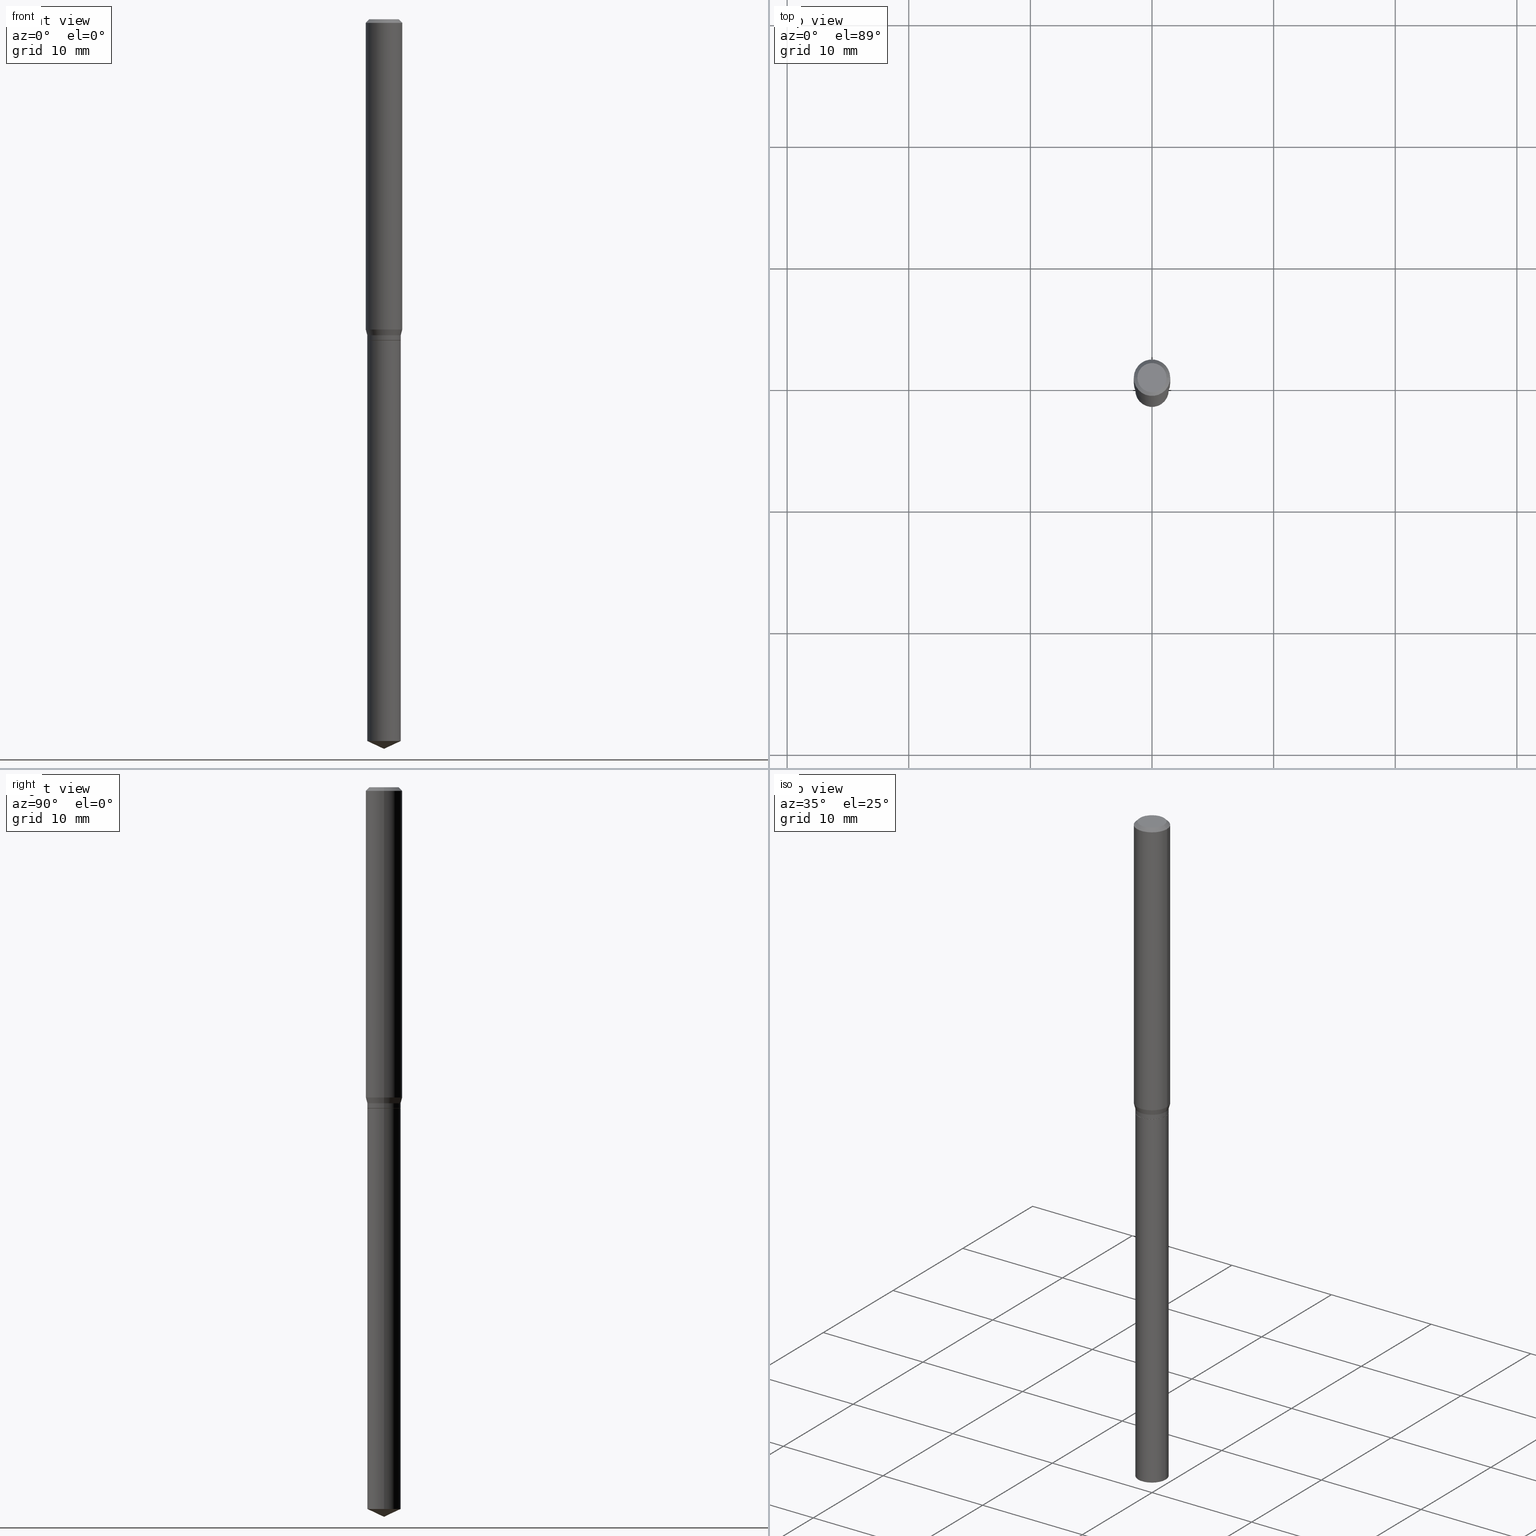
[diagram: canonical four-view strip — front | top / right | iso, engineering-drawing reading convention]
A machine part, canonical four-view strip (front | top / right | iso — engineering-drawing reading convention). The complete STEP part file that produces these views, byte-faithful:
ISO-10303-21;
HEADER;
FILE_DESCRIPTION (( 'STEP AP203' ),
    '1' );
FILE_NAME ('08400.STEP',
    '2024-04-24T14:55:23',
    ( '' ),
    ( '' ),
    'SwSTEP 2.0',
    'SolidWorks 2023',
    '' );
FILE_SCHEMA (( 'CONFIG_CONTROL_DESIGN' ));
ENDSEC;

DATA;
#1 = ORIENTED_EDGE ( 'NONE', *, *, #185, .T. ) ;
#2 = UNCERTAINTY_MEASURE_WITH_UNIT (LENGTH_MEASURE( 1.000000000000000082E-05 ), #318, 'distance_accuracy_value', 'NONE');
#3 = AXIS2_PLACEMENT_3D ( 'NONE', #157, #47, #305 ) ;
#4 = APPROVAL_PERSON_ORGANIZATION ( #189, #57, #398 ) ;
#5 = ORIENTED_EDGE ( 'NONE', *, *, #431, .T. ) ;
#6 = PRODUCT_RELATED_PRODUCT_CATEGORY ( 'detail', '', ( #388 ) ) ;
#7 = LINE ( 'NONE', #156, #192 ) ;
#8 = CARTESIAN_POINT ( 'NONE',  ( -9.050210213589845843E-28, 1.292130163076976058E-13, 37.00807874015747956 ) ) ;
#9 = CC_DESIGN_PERSON_AND_ORGANIZATION_ASSIGNMENT ( #177, #149, ( #374 ) ) ;
#10 = CIRCLE ( 'NONE', #115, 0.05414999999999999675 ) ;
#11 = ORGANIZATION ( 'UNSPECIFIED', 'UNSPECIFIED', '' ) ;
#12 = ORIENTED_EDGE ( 'NONE', *, *, #49, .T. ) ;
#13 = DIRECTION ( 'NONE',  ( -2.445468806185136597E-29, 3.491481338843145583E-15, 1.000000000000000000 ) ) ;
#14 = ORIENTED_EDGE ( 'NONE', *, *, #336, .F. ) ;
#15 = PERSON_AND_ORGANIZATION_ROLE ( 'design_owner' ) ;
#16 = CLOSED_SHELL ( 'NONE', ( #392, #126, #437, #198, #291, #445, #472, #255, #280, #110, #339, #352 ) ) ;
#17 = FACE_OUTER_BOUND ( 'NONE', #267, .T. ) ;
#18 = AXIS2_PLACEMENT_3D ( 'NONE', #467, #130, #319 ) ;
#19 = AXIS2_PLACEMENT_3D ( 'NONE', #421, #86, #378 ) ;
#20 = CALENDAR_DATE ( 2024, 24, 4 ) ;
#21 = DIRECTION ( 'NONE',  ( -2.445468806185136877E-29, 3.491481338843145188E-15, 1.000000000000000000 ) ) ;
#22 = DIRECTION ( 'NONE',  ( -2.445468806185136597E-29, 3.491481338843145583E-15, 1.000000000000000000 ) ) ;
#23 = EDGE_CURVE ( 'NONE', #33, #380, #306, .T. ) ;
#24 = CARTESIAN_POINT ( 'NONE',  ( 0.05414999999999998981, -3.949912838633250169E-15, -1.023000000000000353 ) ) ;
#25 = PRODUCT_DEFINITION ( 'UNKNOWN', '', #374, #78 ) ;
#26 = DIRECTION ( 'NONE',  ( -2.445468806185136597E-29, 3.491481338843145583E-15, 1.000000000000000000 ) ) ;
#27 = DATE_AND_TIME ( #262, #275 ) ;
#28 = SECURITY_CLASSIFICATION ( '', '', #370 ) ;
#29 = EDGE_LOOP ( 'NONE', ( #12, #224 ) ) ;
#30 = CARTESIAN_POINT ( 'NONE',  ( 2.456994180945656544E-29, -3.507936519460355438E-15, -1.004712951042912472 ) ) ;
#31 = EDGE_CURVE ( 'NONE', #335, #365, #82, .T. ) ;
#32 = DIRECTION ( 'NONE',  ( -2.445468806185136597E-29, 3.491481338843145583E-15, 1.000000000000000000 ) ) ;
#33 = VERTEX_POINT ( 'NONE', #148 ) ;
#34 = CLOSED_SHELL ( 'NONE', ( #170, #427, #37, #175, #375 ) ) ;
#35 = CIRCLE ( 'NONE', #348, 0.05905000000000011628 ) ;
#36 = ORIENTED_EDGE ( 'NONE', *, *, #85, .T. ) ;
#37 = ADVANCED_FACE ( 'NONE', ( #226 ), #208, .T. ) ;
#38 = CARTESIAN_POINT ( 'NONE',  ( 0.05904999999999999832, -4.463468013801466955E-16, -0.01181000000000007044 ) ) ;
#39 = COORDINATED_UNIVERSAL_TIME_OFFSET ( 5, 0, .BEHIND. ) ;
#40 = ORIENTED_EDGE ( 'NONE', *, *, #359, .F. ) ;
#41 = EDGE_CURVE ( 'NONE', #343, #333, #59, .T. ) ;
#42 = DIRECTION ( 'NONE',  ( 1.000000000000000000, -6.982962677686271444E-15, 0.000000000000000000 ) ) ;
#43 = PERSON_AND_ORGANIZATION ( #456, #11 ) ;
#44 = ORIENTED_EDGE ( 'NONE', *, *, #46, .T. ) ;
#45 = VECTOR ( 'NONE', #315, 39.37007874015748143 ) ;
#46 = EDGE_CURVE ( 'NONE', #340, #440, #360, .T. ) ;
#47 = DIRECTION ( 'NONE',  ( 2.445468806185136597E-29, -3.491481338843145583E-15, -1.000000000000000000 ) ) ;
#48 = ORIENTED_EDGE ( 'NONE', *, *, #269, .F. ) ;
#49 = EDGE_CURVE ( 'NONE', #365, #335, #10, .T. ) ;
#50 = CARTESIAN_POINT ( 'NONE',  ( 0.05905000000000011628, -3.920280465577730753E-15, -1.004712951042912472 ) ) ;
#51 = FACE_OUTER_BOUND ( 'NONE', #285, .T. ) ;
#52 = VECTOR ( 'NONE', #410, 39.37007874015748143 ) ;
#53 = APPROVAL_PERSON_ORGANIZATION ( #463, #330, #465 ) ;
#54 = APPLICATION_PROTOCOL_DEFINITION ( 'international standard', 'config_control_design', 1994, #372 ) ;
#55 = CARTESIAN_POINT ( 'NONE',  ( 8.265746106709734507E-48, -1.180129479067563789E-33, -3.380025165646692144E-19 ) ) ;
#56 = DIRECTION ( 'NONE',  ( -2.445468806185136597E-29, 3.491481338843145583E-15, 1.000000000000000000 ) ) ;
#57 = APPROVAL ( #454, 'UNSPECIFIED' ) ;
#58 = COORDINATED_UNIVERSAL_TIME_OFFSET ( 5, 0, .BEHIND. ) ;
#59 = CIRCLE ( 'NONE', #459, 0.05414999999999999675 ) ;
#60 = FACE_OUTER_BOUND ( 'NONE', #369, .T. ) ;
#61 = AXIS2_PLACEMENT_3D ( 'NONE', #396, #200, #342 ) ;
#62 = EDGE_CURVE ( 'NONE', #414, #268, #297, .T. ) ;
#63 = DIRECTION ( 'NONE',  ( 0.000000000000000000, 0.000000000000000000, 1.000000000000000000 ) ) ;
#64 = DIRECTION ( 'NONE',  ( -2.445468806185136597E-29, 3.491481338843145583E-15, 1.000000000000000000 ) ) ;
#65 = CARTESIAN_POINT ( 'NONE',  ( 2.501714588727395656E-29, -3.571785409636539086E-15, -1.023000000000000353 ) ) ;
#66 = AXIS2_PLACEMENT_3D ( 'NONE', #257, #289, #106 ) ;
#67 = CONICAL_SURFACE ( 'NONE', #416, 0.05364999999999999630, 0.7853981633974056464 ) ;
#68 = DIRECTION ( 'NONE',  ( 1.000000000000000000, -6.982962677686266711E-15, 0.000000000000000000 ) ) ;
#69 = EDGE_LOOP ( 'NONE', ( #404, #462, #124, #329 ) ) ;
#70 = DIRECTION ( 'NONE',  ( -2.438088387897960049E-29, 3.491481338843145188E-15, 1.000000000000000000 ) ) ;
#71 = ORIENTED_EDGE ( 'NONE', *, *, #31, .F. ) ;
#72 = DIRECTION ( 'NONE',  ( 1.000000000000000000, -6.982962677686261977E-15, 0.000000000000000000 ) ) ;
#73 = DIRECTION ( 'NONE',  ( 2.438088387897960049E-29, -3.491481338843145188E-15, -1.000000000000000000 ) ) ;
#74 = ORIENTED_EDGE ( 'NONE', *, *, #420, .F. ) ;
#75 = VECTOR ( 'NONE', #438, 39.37007874015748143 ) ;
#76 = CARTESIAN_POINT ( 'NONE',  ( 2.541331183387593623E-29, -3.628347407325796590E-15, -1.039199999999999902 ) ) ;
#77 = ORIENTED_EDGE ( 'NONE', *, *, #41, .T. ) ;
#78 = DESIGN_CONTEXT ( 'detailed design', #203, 'design' ) ;
#79 = EDGE_CURVE ( 'NONE', #476, #155, #210, .T. ) ;
#80 = ORIENTED_EDGE ( 'NONE', *, *, #79, .T. ) ;
#81 = FACE_OUTER_BOUND ( 'NONE', #227, .T. ) ;
#82 = CIRCLE ( 'NONE', #199, 0.05414999999999999675 ) ;
#83 = DIRECTION ( 'NONE',  ( 1.000000000000000000, -6.982962677686263555E-15, 0.000000000000000000 ) ) ;
#84 = LOCAL_TIME ( 10, 55, 23.00000000000000000, #320 ) ;
#85 = EDGE_CURVE ( 'NONE', #440, #340, #35, .T. ) ;
#86 = DIRECTION ( 'NONE',  ( -2.445468806185136597E-29, 3.491481338843145583E-15, 1.000000000000000000 ) ) ;
#87 = CC_DESIGN_SECURITY_CLASSIFICATION ( #28, ( #374 ) ) ;
#88 = LINE ( 'NONE', #127, #452 ) ;
#89 = EDGE_CURVE ( 'NONE', #487, #476, #261, .T. ) ;
#90 = CARTESIAN_POINT ( 'NONE',  ( 5.776197320209293305E-29, -8.246878922347511025E-15, -2.362000000000000099 ) ) ;
#91 =( LENGTH_UNIT ( ) NAMED_UNIT ( * ) SI_UNIT ( $, .METRE. ) );
#92 = DIRECTION ( 'NONE',  ( 1.000000000000000000, -6.982962677686261977E-15, 0.000000000000000000 ) ) ;
#93 = EDGE_CURVE ( 'NONE', #268, #440, #142, .T. ) ;
#94 = DIRECTION ( 'NONE',  ( -2.445468806185136877E-29, 3.491481338843145188E-15, 1.000000000000000000 ) ) ;
#95 = CARTESIAN_POINT ( 'NONE',  ( -0.05905000000000006077, 4.195754854663395916E-16, -2.904631170795524694E-30 ) ) ;
#96 = CIRCLE ( 'NONE', #66, 0.05904999999999999832 ) ;
#97 = EDGE_CURVE ( 'NONE', #155, #476, #96, .T. ) ;
#98 = APPROVAL_ROLE ( '' ) ;
#99 = PLANE ( 'NONE',  #218 ) ;
#100 = CARTESIAN_POINT ( 'NONE',  ( -0.05414999999999998981, -3.214434646732362612E-15, -1.038699999999999957 ) ) ;
#101 = DATE_TIME_ROLE ( 'classification_date' ) ;
#102 = FACE_OUTER_BOUND ( 'NONE', #222, .T. ) ;
#103 = CARTESIAN_POINT ( 'NONE',  ( -0.05414999999999999675, -5.508773344447652182E-15, -1.039199999999999902 ) ) ;
#104 = ORIENTED_EDGE ( 'NONE', *, *, #89, .T. ) ;
#105 = CONICAL_SURFACE ( 'NONE', #3, 0.05904999999999999832, 0.7853981633974452814 ) ;
#106 = DIRECTION ( 'NONE',  ( 1.000000000000000000, -6.982962677686266711E-15, 0.000000000000000000 ) ) ;
#107 = ORIENTED_EDGE ( 'NONE', *, *, #359, .T. ) ;
#108 = CARTESIAN_POINT ( 'NONE',  ( 2.541331183387593623E-29, -3.628347407325796590E-15, -1.039199999999999902 ) ) ;
#109 = CARTESIAN_POINT ( 'NONE',  ( 4.132873053354867254E-48, -5.900647395337818946E-34, -1.690012582823346072E-19 ) ) ;
#110 = ADVANCED_FACE ( 'NONE', ( #403 ), #486, .F. ) ;
#111 = EDGE_LOOP ( 'NONE', ( #121, #40, #322, #386 ) ) ;
#112 = CARTESIAN_POINT ( 'NONE',  ( 2.888098660104663766E-31, -4.123439461173779647E-17, -0.01181000000000007044 ) ) ;
#113 = EDGE_LOOP ( 'NONE', ( #239, #447, #290, #205 ) ) ;
#114 = CC_DESIGN_DATE_AND_TIME_ASSIGNMENT ( #120, #101, ( #28 ) ) ;
#115 = AXIS2_PLACEMENT_3D ( 'NONE', #444, #490, #298 ) ;
#116 = AXIS2_PLACEMENT_3D ( 'NONE', #215, #64, #249 ) ;
#117 = AXIS2_PLACEMENT_3D ( 'NONE', #8, #337, #195 ) ;
#118 = CARTESIAN_POINT ( 'NONE',  ( 2.541331183387593623E-29, -3.628347407325796590E-15, -1.039199999999999902 ) ) ;
#119 = VERTEX_POINT ( 'NONE', #186 ) ;
#120 = DATE_AND_TIME ( #489, #167 ) ;
#121 = ORIENTED_EDGE ( 'NONE', *, *, #89, .F. ) ;
#122 = LOCAL_TIME ( 10, 55, 23.00000000000000000, #58 ) ;
#123 = FACE_OUTER_BOUND ( 'NONE', #358, .T. ) ;
#124 = ORIENTED_EDGE ( 'NONE', *, *, #85, .F. ) ;
#125 = DIRECTION ( 'NONE',  ( 1.000000000000000000, 0.000000000000000000, 0.000000000000000000 ) ) ;
#126 = ADVANCED_FACE ( 'NONE', ( #377 ), #105, .T. ) ;
#127 = CARTESIAN_POINT ( 'NONE',  ( 0.05905000000000006077, -4.123439461173744764E-16, 2.879382386107503023E-30 ) ) ;
#128 = CARTESIAN_POINT ( 'NONE',  ( -0.05414999999999999675, -3.243588515911702905E-15, -1.039200000000000124 ) ) ;
#129 = APPROVAL_DATE_TIME ( #393, #330 ) ;
#130 = DIRECTION ( 'NONE',  ( -2.445468806185136597E-29, 3.491481338843145583E-15, 1.000000000000000000 ) ) ;
#131 = DATE_TIME_ROLE ( 'creation_date' ) ;
#132 = DIRECTION ( 'NONE',  ( -1.000000000000000000, 6.982962677686265922E-15, -4.876176775795935793E-29 ) ) ;
#133 = CARTESIAN_POINT ( 'NONE',  ( 2.541331183387594184E-29, -3.628347407325797379E-15, -1.039200000000000124 ) ) ;
#134 = PERSON_AND_ORGANIZATION ( #456, #11 ) ;
#135 = LINE ( 'NONE', #347, #75 ) ;
#136 = CONICAL_SURFACE ( 'NONE', #217, 0.05904999999999999832, 0.7853981633974452814 ) ;
#137 = AXIS2_PLACEMENT_3D ( 'NONE', #245, #22, #390 ) ;
#138 = SHAPE_DEFINITION_REPRESENTATION ( #468, #477 ) ;
#139 = LINE ( 'NONE', #311, #361 ) ;
#140 = DIRECTION ( 'NONE',  ( 1.000000000000000000, -6.982962677686266711E-15, 0.000000000000000000 ) ) ;
#141 = FACE_OUTER_BOUND ( 'NONE', #383, .T. ) ;
#142 = LINE ( 'NONE', #326, #52 ) ;
#143 = AXIS2_PLACEMENT_3D ( 'NONE', #389, #56, #282 ) ;
#144 = ORIENTED_EDGE ( 'NONE', *, *, #258, .F. ) ;
#145 = CARTESIAN_POINT ( 'NONE',  ( 0.05415000000000000369, -8.536844493394409383E-15, -2.336749440310907033 ) ) ;
#146 = ORIENTED_EDGE ( 'NONE', *, *, #266, .T. ) ;
#147 = EDGE_LOOP ( 'NONE', ( #407, #104, #80, #253 ) ) ;
#148 = CARTESIAN_POINT ( 'NONE',  ( 0.05364999999999999630, -4.002983354983664667E-15, -1.039199999999999902 ) ) ;
#149 = PERSON_AND_ORGANIZATION_ROLE ( 'creator' ) ;
#150 = ORIENTED_EDGE ( 'NONE', *, *, #62, .F. ) ;
#151 = DIRECTION ( 'NONE',  ( 1.000000000000000000, -6.982962677686263555E-15, 0.000000000000000000 ) ) ;
#152 = ORIENTED_EDGE ( 'NONE', *, *, #202, .F. ) ;
#153 = ORIENTED_EDGE ( 'NONE', *, *, #461, .T. ) ;
#154 = CARTESIAN_POINT ( 'NONE',  ( 2.540108448984501382E-29, -3.626601666656375086E-15, -1.038699999999999957 ) ) ;
#155 = VERTEX_POINT ( 'NONE', #419 ) ;
#156 = CARTESIAN_POINT ( 'NONE',  ( -0.05364999999999999630, -3.247141229590503409E-15, -1.039199999999999902 ) ) ;
#157 = CARTESIAN_POINT ( 'NONE',  ( 2.888098660104663766E-31, -4.123439461173779647E-17, -0.01181000000000007044 ) ) ;
#158 = CARTESIAN_POINT ( 'NONE',  ( 2.541331183387593623E-29, -3.628347407325796590E-15, -1.039199999999999902 ) ) ;
#159 = VECTOR ( 'NONE', #276, 39.37007874015748143 ) ;
#160 = CONICAL_SURFACE ( 'NONE', #442, 0.05364999999999999630, 0.7853981633974056464 ) ;
#161 = LINE ( 'NONE', #379, #250 ) ;
#162 = EDGE_CURVE ( 'NONE', #33, #188, #161, .T. ) ;
#163 = CARTESIAN_POINT ( 'NONE',  ( 0.05904999999999999832, -4.535783407291118600E-16, -0.01181000000000007044 ) ) ;
#164 = DIRECTION ( 'NONE',  ( -2.445468806185136597E-29, 3.491481338843145583E-15, 1.000000000000000000 ) ) ;
#165 = APPROVAL_STATUS ( 'not_yet_approved' ) ;
#166 = AXIS2_PLACEMENT_3D ( 'NONE', #55, #204, #353 ) ;
#167 = LOCAL_TIME ( 10, 55, 23.00000000000000000, #39 ) ;
#168 = CYLINDRICAL_SURFACE ( 'NONE', #312, 0.05414999999999999675 ) ;
#169 = DATE_AND_TIME ( #20, #122 ) ;
#170 = ADVANCED_FACE ( 'NONE', ( #51 ), #382, .T. ) ;
#171 = DIRECTION ( 'NONE',  ( 1.000000000000000000, -6.982962677686263555E-15, 0.000000000000000000 ) ) ;
#172 = CARTESIAN_POINT ( 'NONE',  ( 0.05414999999999999675, -4.006474836322508463E-15, -1.039200000000000124 ) ) ;
#173 = AXIS2_PLACEMENT_3D ( 'NONE', #109, #73, #364 ) ;
#174 = DIRECTION ( 'NONE',  ( -2.445468806185136597E-29, 3.491481338843145583E-15, 1.000000000000000000 ) ) ;
#175 = ADVANCED_FACE ( 'NONE', ( #17 ), #168, .T. ) ;
#176 = ORIENTED_EDGE ( 'NONE', *, *, #286, .F. ) ;
#177 = PERSON_AND_ORGANIZATION ( #456, #11 ) ;
#178 = EDGE_CURVE ( 'NONE', #333, #343, #408, .T. ) ;
#179 = DIRECTION ( 'NONE',  ( -2.445468806185136877E-29, 3.491481338843145188E-15, 1.000000000000000000 ) ) ;
#180 = DIRECTION ( 'NONE',  ( -2.445468806185136597E-29, 3.491481338843145583E-15, 1.000000000000000000 ) ) ;
#181 = CARTESIAN_POINT ( 'NONE',  ( -0.05414999999999998981, 3.847588914140941782E-16, -2.663603351373030908E-30 ) ) ;
#182 = DIRECTION ( 'NONE',  ( 1.000000000000000000, -6.982962677686261977E-15, 0.000000000000000000 ) ) ;
#183 = CIRCLE ( 'NONE', #166, 0.04724000000000000421 ) ;
#184 = ORIENTED_EDGE ( 'NONE', *, *, #269, .T. ) ;
#185 = EDGE_CURVE ( 'NONE', #343, #365, #241, .T. ) ;
#186 = CARTESIAN_POINT ( 'NONE',  ( 5.776197320209293305E-29, -8.246878922347511025E-15, -2.362000000000000099 ) ) ;
#187 = ORIENTED_EDGE ( 'NONE', *, *, #484, .F. ) ;
#188 = VERTEX_POINT ( 'NONE', #469 ) ;
#189 = PERSON_AND_ORGANIZATION ( #456, #11 ) ;
#190 = DATE_AND_TIME ( #247, #84 ) ;
#191 = VECTOR ( 'NONE', #480, 39.37007874015748143 ) ;
#192 = VECTOR ( 'NONE', #304, 39.37007874015748143 ) ;
#193 = CARTESIAN_POINT ( 'NONE',  ( -0.05414999999999998981, -3.214434646732362612E-15, -1.023000000000000353 ) ) ;
#194 = EDGE_CURVE ( 'NONE', #340, #155, #391, .T. ) ;
#195 = DIRECTION ( 'NONE',  ( 1.000000000000000000, -6.982962677686265922E-15, 0.000000000000000000 ) ) ;
#196 = EDGE_LOOP ( 'NONE', ( #107, #356 ) ) ;
#197 = CARTESIAN_POINT ( 'NONE',  ( 2.540108448984501382E-29, -3.626601666656375086E-15, -1.038699999999999957 ) ) ;
#198 = ADVANCED_FACE ( 'NONE', ( #244 ), #384, .T. ) ;
#199 = AXIS2_PLACEMENT_3D ( 'NONE', #118, #293, #42 ) ;
#200 = DIRECTION ( 'NONE',  ( -2.445468806185136597E-29, 3.491481338843145583E-15, 1.000000000000000000 ) ) ;
#201 = VECTOR ( 'NONE', #428, 39.37007874015748143 ) ;
#202 = EDGE_CURVE ( 'NONE', #119, #333, #278, .T. ) ;
#203 = APPLICATION_CONTEXT ( 'configuration controlled 3d designs of mechanical parts and assemblies' ) ;
#204 = DIRECTION ( 'NONE',  ( -2.445468806185136597E-29, 3.491481338843145583E-15, 1.000000000000000000 ) ) ;
#205 = ORIENTED_EDGE ( 'NONE', *, *, #443, .F. ) ;
#206 = LINE ( 'NONE', #284, #225 ) ;
#207 =( NAMED_UNIT ( * ) SI_UNIT ( $, .STERADIAN. ) SOLID_ANGLE_UNIT ( ) );
#208 = CONICAL_SURFACE ( 'NONE', #481, 84.42940631927480410, 1.134464013796318005 ) ;
#209 = DIRECTION ( 'NONE',  ( 2.438088387897960049E-29, -3.491481338843145188E-15, -1.000000000000000000 ) ) ;
#210 = CIRCLE ( 'NONE', #263, 0.05904999999999999832 ) ;
#211 = CIRCLE ( 'NONE', #137, 0.05364999999999999630 ) ;
#212 = DIRECTION ( 'NONE',  ( -0.7071067811865453523, 2.468850131082234184E-15, -0.7071067811865496822 ) ) ;
#213 = CARTESIAN_POINT ( 'NONE',  ( -0.04724000000000000421, 3.504923541997677355E-16, -3.380025165670481712E-19 ) ) ;
#214 = DIMENSIONAL_EXPONENTS ( 1.000000000000000000, 0.000000000000000000, 0.000000000000000000, 0.000000000000000000, 0.000000000000000000, 0.000000000000000000, 0.000000000000000000 ) ;
#215 = CARTESIAN_POINT ( 'NONE',  ( 5.714447864150900771E-29, -8.158717064397696721E-15, -2.336749440310907033 ) ) ;
#216 = CC_DESIGN_PERSON_AND_ORGANIZATION_ASSIGNMENT ( #229, #367, ( #374 ) ) ;
#217 = AXIS2_PLACEMENT_3D ( 'NONE', #317, #430, #471 ) ;
#218 = AXIS2_PLACEMENT_3D ( 'NONE', #466, #209, #132 ) ;
#219 = DIRECTION ( 'NONE',  ( -2.445468806185136597E-29, 3.491481338843145583E-15, 1.000000000000000000 ) ) ;
#220 = MANIFOLD_SOLID_BREP ( 'Body-Move/Copy2[1]', #34 ) ;
#221 = ORIENTED_EDGE ( 'NONE', *, *, #93, .T. ) ;
#222 = EDGE_LOOP ( 'NONE', ( #415, #453, #223, #451 ) ) ;
#223 = ORIENTED_EDGE ( 'NONE', *, *, #248, .F. ) ;
#224 = ORIENTED_EDGE ( 'NONE', *, *, #31, .T. ) ;
#225 = VECTOR ( 'NONE', #212, 39.37007874015748143 ) ;
#226 = FACE_OUTER_BOUND ( 'NONE', #449, .T. ) ;
#227 = EDGE_LOOP ( 'NONE', ( #411, #5, #74, #417 ) ) ;
#228 = CARTESIAN_POINT ( 'NONE',  ( 2.456994180945656544E-29, -3.507936519460355438E-15, -1.004712951042912472 ) ) ;
#229 = PERSON_AND_ORGANIZATION ( #456, #11 ) ;
#230 = ORIENTED_EDGE ( 'NONE', *, *, #62, .T. ) ;
#231 = DIRECTION ( 'NONE',  ( 1.000000000000000000, -6.982962677686261977E-15, 0.000000000000000000 ) ) ;
#232 = CIRCLE ( 'NONE', #299, 0.04724000000000000421 ) ;
#233 = ORIENTED_EDGE ( 'NONE', *, *, #194, .F. ) ;
#234 = DIRECTION ( 'NONE',  ( -2.445468806185136597E-29, 3.491481338843145583E-15, 1.000000000000000000 ) ) ;
#235 = AXIS2_PLACEMENT_3D ( 'NONE', #436, #164, #171 ) ;
#236 = DIRECTION ( 'NONE',  ( -2.445468806185136597E-29, 3.491481338843145583E-15, 1.000000000000000000 ) ) ;
#237 = CC_DESIGN_APPROVAL ( #283, ( #374 ) ) ;
#238 = CYLINDRICAL_SURFACE ( 'NONE', #18, 0.05905000000000006077 ) ;
#239 = ORIENTED_EDGE ( 'NONE', *, *, #431, .F. ) ;
#240 = CARTESIAN_POINT ( 'NONE',  ( 2.501714588727395656E-29, -3.571785409636539086E-15, -1.023000000000000353 ) ) ;
#241 = LINE ( 'NONE', #172, #271 ) ;
#242 = EDGE_CURVE ( 'NONE', #487, #256, #183, .T. ) ;
#243 = CARTESIAN_POINT ( 'NONE',  ( -0.05364999999999999630, -3.244492002416391813E-15, -1.039199999999999902 ) ) ;
#244 = FACE_OUTER_BOUND ( 'NONE', #69, .T. ) ;
#245 = CARTESIAN_POINT ( 'NONE',  ( 2.541331183387593623E-29, -3.628347407325796590E-15, -1.039199999999999902 ) ) ;
#246 = CARTESIAN_POINT ( 'NONE',  ( -0.05415000000000000369, -7.773958172983603036E-15, -2.336749440310907033 ) ) ;
#247 = CALENDAR_DATE ( 2024, 24, 4 ) ;
#248 = EDGE_CURVE ( 'NONE', #268, #414, #441, .T. ) ;
#249 = DIRECTION ( 'NONE',  ( 1.000000000000000000, -6.982962677686261977E-15, 0.000000000000000000 ) ) ;
#250 = VECTOR ( 'NONE', #301, 39.37007874015748143 ) ;
#251 = LINE ( 'NONE', #181, #341 ) ;
#252 = AXIS2_PLACEMENT_3D ( 'NONE', #154, #303, #83 ) ;
#253 = ORIENTED_EDGE ( 'NONE', *, *, #273, .F. ) ;
#254 = EDGE_LOOP ( 'NONE', ( #14, #457, #146, #150 ) ) ;
#255 = ADVANCED_FACE ( 'NONE', ( #60 ), #238, .T. ) ;
#256 = VERTEX_POINT ( 'NONE', #213 ) ;
#257 = CARTESIAN_POINT ( 'NONE',  ( 2.888098660104663766E-31, -4.123439461173779647E-17, -0.01181000000000007044 ) ) ;
#258 = EDGE_CURVE ( 'NONE', #414, #340, #321, .T. ) ;
#259 = ORIENTED_EDGE ( 'NONE', *, *, #194, .T. ) ;
#260 = AXIS2_PLACEMENT_3D ( 'NONE', #228, #406, #68 ) ;
#261 = LINE ( 'NONE', #38, #191 ) ;
#262 = CALENDAR_DATE ( 2024, 24, 4 ) ;
#263 = AXIS2_PLACEMENT_3D ( 'NONE', #112, #219, #140 ) ;
#264 =( GEOMETRIC_REPRESENTATION_CONTEXT ( 3 ) GLOBAL_UNCERTAINTY_ASSIGNED_CONTEXT ( ( #2 ) ) GLOBAL_UNIT_ASSIGNED_CONTEXT ( ( #318, #387, #207 ) ) REPRESENTATION_CONTEXT ( 'NONE', 'WORKASPACE' ) );
#265 = ORIENTED_EDGE ( 'NONE', *, *, #178, .T. ) ;
#266 = EDGE_CURVE ( 'NONE', #188, #268, #139, .T. ) ;
#267 = EDGE_LOOP ( 'NONE', ( #48, #265, #1, #71 ) ) ;
#268 = VERTEX_POINT ( 'NONE', #24 ) ;
#269 = EDGE_CURVE ( 'NONE', #333, #335, #464, .T. ) ;
#270 = EDGE_LOOP ( 'NONE', ( #36, #259, #308, #357 ) ) ;
#271 = VECTOR ( 'NONE', #21, 39.37007874015748143 ) ;
#272 = CONICAL_SURFACE ( 'NONE', #325, 0.05414999999999998981, 0.2617993877991502960 ) ;
#273 = EDGE_CURVE ( 'NONE', #256, #155, #206, .T. ) ;
#274 = CYLINDRICAL_SURFACE ( 'NONE', #61, 0.05414999999999998981 ) ;
#275 = LOCAL_TIME ( 10, 55, 23.00000000000000000, #332 ) ;
#276 = DIRECTION ( 'NONE',  ( -2.445468806185136877E-29, 3.491481338843145188E-15, 1.000000000000000000 ) ) ;
#277 = DIRECTION ( 'NONE',  ( 1.000000000000000000, -6.982962677686263555E-15, 0.000000000000000000 ) ) ;
#278 = LINE ( 'NONE', #90, #201 ) ;
#279 = DIRECTION ( 'NONE',  ( -2.445468806185136877E-29, 3.491481338843145188E-15, 1.000000000000000000 ) ) ;
#280 = ADVANCED_FACE ( 'NONE', ( #350 ), #136, .T. ) ;
#281 = APPROVAL_STATUS ( 'not_yet_approved' ) ;
#282 = DIRECTION ( 'NONE',  ( 1.000000000000000000, -6.982962677686266711E-15, 4.876176775795935232E-29 ) ) ;
#283 = APPROVAL ( #281, 'UNSPECIFIED' ) ;
#284 = CARTESIAN_POINT ( 'NONE',  ( -0.05904999999999999832, 3.711095515056362547E-16, -0.01181000000000007044 ) ) ;
#285 = EDGE_LOOP ( 'NONE', ( #77, #184, #328, #338 ) ) ;
#286 = EDGE_CURVE ( 'NONE', #119, #343, #135, .T. ) ;
#287 = PLANE ( 'NONE',  #363 ) ;
#288 = AXIS2_PLACEMENT_3D ( 'NONE', #197, #234, #277 ) ;
#289 = DIRECTION ( 'NONE',  ( -2.445468806185136597E-29, 3.491481338843145583E-15, 1.000000000000000000 ) ) ;
#290 = ORIENTED_EDGE ( 'NONE', *, *, #162, .T. ) ;
#291 = ADVANCED_FACE ( 'NONE', ( #102 ), #425, .T. ) ;
#292 = FACE_OUTER_BOUND ( 'NONE', #113, .T. ) ;
#293 = DIRECTION ( 'NONE',  ( -2.445468806185136597E-29, 3.491481338843145583E-15, 1.000000000000000000 ) ) ;
#294 = ORIENTED_EDGE ( 'NONE', *, *, #41, .F. ) ;
#295 = DIRECTION ( 'NONE',  ( 1.000000000000000000, -6.982962677686265922E-15, 4.876176775795935793E-29 ) ) ;
#296 = CARTESIAN_POINT ( 'NONE',  ( 5.714447864150900771E-29, -8.158717064397696721E-15, -2.336749440310907033 ) ) ;
#297 = CIRCLE ( 'NONE', #399, 0.05414999999999998981 ) ;
#298 = DIRECTION ( 'NONE',  ( 1.000000000000000000, -6.982962677686271444E-15, 0.000000000000000000 ) ) ;
#299 = AXIS2_PLACEMENT_3D ( 'NONE', #362, #327, #448 ) ;
#300 = CC_DESIGN_DATE_AND_TIME_ASSIGNMENT ( #169, #131, ( #25 ) ) ;
#301 = DIRECTION ( 'NONE',  ( 0.7071067811865173747, -2.468850131081940727E-15, 0.7071067811865776598 ) ) ;
#302 = VERTEX_POINT ( 'NONE', #100 ) ;
#303 = DIRECTION ( 'NONE',  ( -2.445468806185136597E-29, 3.491481338843145583E-15, 1.000000000000000000 ) ) ;
#304 = DIRECTION ( 'NONE',  ( -0.7071067811865173747, 7.493145998870245297E-15, 0.7071067811865776598 ) ) ;
#305 = DIRECTION ( 'NONE',  ( -1.000000000000000000, 6.982962677686266711E-15, 0.000000000000000000 ) ) ;
#306 = CIRCLE ( 'NONE', #373, 0.05364999999999999630 ) ;
#307 = APPROVAL_PERSON_ORGANIZATION ( #134, #283, #98 ) ;
#308 = ORIENTED_EDGE ( 'NONE', *, *, #79, .F. ) ;
#309 = FACE_OUTER_BOUND ( 'NONE', #254, .T. ) ;
#310 = MECHANICAL_CONTEXT ( 'NONE', #372, 'mechanical' ) ;
#311 = CARTESIAN_POINT ( 'NONE',  ( 0.05414999999999998981, -3.781274289967112808E-16, 2.640449724093498430E-30 ) ) ;
#312 = AXIS2_PLACEMENT_3D ( 'NONE', #397, #26, #354 ) ;
#313 = CALENDAR_DATE ( 2024, 24, 4 ) ;
#314 = AXIS2_PLACEMENT_3D ( 'NONE', #433, #63, #125 ) ;
#315 = DIRECTION ( 'NONE',  ( -2.445468806185136877E-29, 3.491481338843145188E-15, 1.000000000000000000 ) ) ;
#316 = DIRECTION ( 'NONE',  ( 1.000000000000000000, -6.982962677686263555E-15, 0.000000000000000000 ) ) ;
#317 = CARTESIAN_POINT ( 'NONE',  ( 2.888098660104663766E-31, -4.123439461173779647E-17, -0.01181000000000007044 ) ) ;
#318 =( CONVERSION_BASED_UNIT ( 'INCH', #423 ) LENGTH_UNIT ( ) NAMED_UNIT ( #214 ) );
#319 = DIRECTION ( 'NONE',  ( 1.000000000000000000, -6.982962677686266711E-15, 4.876176775795935793E-29 ) ) ;
#320 = COORDINATED_UNIVERSAL_TIME_OFFSET ( 5, 0, .BEHIND. ) ;
#321 = LINE ( 'NONE', #474, #460 ) ;
#322 = ORIENTED_EDGE ( 'NONE', *, *, #273, .T. ) ;
#323 = DIRECTION ( 'NONE',  ( -2.445468806185136597E-29, 3.491481338843145583E-15, 1.000000000000000000 ) ) ;
#324 = DIRECTION ( 'NONE',  ( 1.000000000000000000, -6.982962677686266711E-15, 0.000000000000000000 ) ) ;
#325 = AXIS2_PLACEMENT_3D ( 'NONE', #240, #236, #316 ) ;
#326 = CARTESIAN_POINT ( 'NONE',  ( 0.05414999999999998981, -3.949912838633250169E-15, -1.023000000000000353 ) ) ;
#327 = DIRECTION ( 'NONE',  ( -2.445468806185136597E-29, 3.491481338843145583E-15, 1.000000000000000000 ) ) ;
#328 = ORIENTED_EDGE ( 'NONE', *, *, #49, .F. ) ;
#329 = ORIENTED_EDGE ( 'NONE', *, *, #93, .F. ) ;
#330 = APPROVAL ( #165, 'UNSPECIFIED' ) ;
#331 = CARTESIAN_POINT ( 'NONE',  ( -9.050210213589845843E-28, 1.292130163076976058E-13, 37.00807874015747956 ) ) ;
#332 = COORDINATED_UNIVERSAL_TIME_OFFSET ( 5, 0, .BEHIND. ) ;
#333 = VERTEX_POINT ( 'NONE', #246 ) ;
#334 = APPROVAL_DATE_TIME ( #190, #57 ) ;
#335 = VERTEX_POINT ( 'NONE', #103 ) ;
#336 = EDGE_CURVE ( 'NONE', #302, #414, #251, .T. ) ;
#337 = DIRECTION ( 'NONE',  ( -2.445468806185136597E-29, 3.491481338843145583E-15, 1.000000000000000000 ) ) ;
#338 = ORIENTED_EDGE ( 'NONE', *, *, #185, .F. ) ;
#339 = ADVANCED_FACE ( 'NONE', ( #141 ), #287, .F. ) ;
#340 = VERTEX_POINT ( 'NONE', #485 ) ;
#341 = VECTOR ( 'NONE', #179, 39.37007874015748143 ) ;
#342 = DIRECTION ( 'NONE',  ( 1.000000000000000000, -6.982962677686266711E-15, 4.876176775795935232E-29 ) ) ;
#343 = VERTEX_POINT ( 'NONE', #145 ) ;
#344 = APPLICATION_PROTOCOL_DEFINITION ( 'international standard', 'config_control_design', 1994, #203 ) ;
#345 = DIRECTION ( 'NONE',  ( -0.2588190451025215721, 5.211531920934551831E-15, 0.9659258262890679791 ) ) ;
#346 = ORIENTED_EDGE ( 'NONE', *, *, #23, .F. ) ;
#347 = CARTESIAN_POINT ( 'NONE',  ( 5.776197320209293305E-29, -8.246878922347511025E-15, -2.362000000000000099 ) ) ;
#348 = AXIS2_PLACEMENT_3D ( 'NONE', #30, #180, #324 ) ;
#349 = COORDINATED_UNIVERSAL_TIME_OFFSET ( 5, 0, .BEHIND. ) ;
#350 = FACE_OUTER_BOUND ( 'NONE', #111, .T. ) ;
#351 = PERSON_AND_ORGANIZATION_ROLE ( 'creator' ) ;
#352 = ADVANCED_FACE ( 'NONE', ( #292 ), #160, .T. ) ;
#353 = DIRECTION ( 'NONE',  ( 1.000000000000000000, -6.982962677686266711E-15, 4.876185090822587894E-29 ) ) ;
#354 = DIRECTION ( 'NONE',  ( 1.000000000000000000, -6.982962677686261977E-15, 0.000000000000000000 ) ) ;
#355 = ORIENTED_EDGE ( 'NONE', *, *, #178, .F. ) ;
#356 = ORIENTED_EDGE ( 'NONE', *, *, #242, .T. ) ;
#357 = ORIENTED_EDGE ( 'NONE', *, *, #461, .F. ) ;
#358 = EDGE_LOOP ( 'NONE', ( #176, #371, #294 ) ) ;
#359 = EDGE_CURVE ( 'NONE', #256, #487, #232, .T. ) ;
#360 = CIRCLE ( 'NONE', #260, 0.05905000000000011628 ) ;
#361 = VECTOR ( 'NONE', #279, 39.37007874015748143 ) ;
#362 = CARTESIAN_POINT ( 'NONE',  ( 8.265746106709734507E-48, -1.180129479067563789E-33, -3.380025165646692144E-19 ) ) ;
#363 = AXIS2_PLACEMENT_3D ( 'NONE', #402, #70, #295 ) ;
#364 = DIRECTION ( 'NONE',  ( -1.000000000000000000, 6.982962677686265922E-15, -4.876176775795935793E-29 ) ) ;
#365 = VERTEX_POINT ( 'NONE', #435 ) ;
#366 = DIRECTION ( 'NONE',  ( -2.445468806185136597E-29, 3.491481338843145583E-15, 1.000000000000000000 ) ) ;
#367 = PERSON_AND_ORGANIZATION_ROLE ( 'design_supplier' ) ;
#368 = ORIENTED_EDGE ( 'NONE', *, *, #97, .F. ) ;
#369 = EDGE_LOOP ( 'NONE', ( #233, #44, #153, #368 ) ) ;
#370 = SECURITY_CLASSIFICATION_LEVEL ( 'unclassified' ) ;
#371 = ORIENTED_EDGE ( 'NONE', *, *, #202, .T. ) ;
#372 = APPLICATION_CONTEXT ( 'configuration controlled 3d designs of mechanical parts and assemblies' ) ;
#373 = AXIS2_PLACEMENT_3D ( 'NONE', #76, #446, #412 ) ;
#374 = PRODUCT_DEFINITION_FORMATION_WITH_SPECIFIED_SOURCE ( 'ANY', '', #388, .NOT_KNOWN. ) ;
#375 = ADVANCED_FACE ( 'NONE', ( #424 ), #99, .F. ) ;
#376 = MANIFOLD_SOLID_BREP ( 'Body-Move/Copy2[2]', #16 ) ;
#377 = FACE_OUTER_BOUND ( 'NONE', #147, .T. ) ;
#378 = DIRECTION ( 'NONE',  ( 1.000000000000000000, -6.982962677686266711E-15, 4.876176775795935793E-29 ) ) ;
#379 = CARTESIAN_POINT ( 'NONE',  ( 0.05364999999999999630, -4.002983354983664667E-15, -1.039199999999999902 ) ) ;
#380 = VERTEX_POINT ( 'NONE', #243 ) ;
#381 = DIRECTION ( 'NONE',  ( -2.445468806185136597E-29, 3.491481338843145583E-15, 1.000000000000000000 ) ) ;
#382 = CYLINDRICAL_SURFACE ( 'NONE', #482, 0.05414999999999999675 ) ;
#383 = EDGE_LOOP ( 'NONE', ( #346, #187 ) ) ;
#384 = CONICAL_SURFACE ( 'NONE', #235, 0.05414999999999998981, 0.2617993877991502960 ) ;
#385 = CC_DESIGN_PERSON_AND_ORGANIZATION_ASSIGNMENT ( #470, #15, ( #388 ) ) ;
#386 = ORIENTED_EDGE ( 'NONE', *, *, #97, .T. ) ;
#387 =( NAMED_UNIT ( * ) PLANE_ANGLE_UNIT ( ) SI_UNIT ( $, .RADIAN. ) );
#388 = PRODUCT ( '08400', '08400', '', ( #310 ) ) ;
#389 = CARTESIAN_POINT ( 'NONE',  ( 0.000000000000000000, 0.000000000000000000, 0.000000000000000000 ) ) ;
#390 = DIRECTION ( 'NONE',  ( 1.000000000000000000, -6.982962677686261977E-15, 0.000000000000000000 ) ) ;
#391 = LINE ( 'NONE', #95, #45 ) ;
#392 = ADVANCED_FACE ( 'NONE', ( #81 ), #67, .T. ) ;
#393 = DATE_AND_TIME ( #313, #434 ) ;
#394 = CC_DESIGN_APPROVAL ( #57, ( #28 ) ) ;
#395 = DIRECTION ( 'NONE',  ( 1.000000000000000000, -6.982962677686263555E-15, 0.000000000000000000 ) ) ;
#396 = CARTESIAN_POINT ( 'NONE',  ( 0.000000000000000000, 0.000000000000000000, 0.000000000000000000 ) ) ;
#397 = CARTESIAN_POINT ( 'NONE',  ( 2.541331183387594184E-29, -3.628347407325797379E-15, -1.039200000000000124 ) ) ;
#398 = APPROVAL_ROLE ( '' ) ;
#399 = AXIS2_PLACEMENT_3D ( 'NONE', #488, #323, #151 ) ;
#400 = CIRCLE ( 'NONE', #252, 0.05414999999999998981 ) ;
#401 = DIRECTION ( 'NONE',  ( 1.000000000000000000, -6.982962677686265922E-15, 0.000000000000000000 ) ) ;
#402 = CARTESIAN_POINT ( 'NONE',  ( 2.541331183387593623E-29, -3.628347407325796590E-15, -1.039199999999999902 ) ) ;
#403 = FACE_OUTER_BOUND ( 'NONE', #196, .T. ) ;
#404 = ORIENTED_EDGE ( 'NONE', *, *, #248, .T. ) ;
#405 = DIRECTION ( 'NONE',  ( -2.445468806185136597E-29, 3.491481338843145583E-15, 1.000000000000000000 ) ) ;
#406 = DIRECTION ( 'NONE',  ( -2.445468806185136597E-29, 3.491481338843145583E-15, 1.000000000000000000 ) ) ;
#407 = ORIENTED_EDGE ( 'NONE', *, *, #242, .F. ) ;
#408 = CIRCLE ( 'NONE', #116, 0.05414999999999999675 ) ;
#409 = CIRCLE ( 'NONE', #288, 0.05414999999999998981 ) ;
#410 = DIRECTION ( 'NONE',  ( 0.2588190451025215721, 1.565188264969619995E-15, 0.9659258262890679791 ) ) ;
#411 = ORIENTED_EDGE ( 'NONE', *, *, #23, .T. ) ;
#412 = DIRECTION ( 'NONE',  ( 1.000000000000000000, -6.982962677686261977E-15, 0.000000000000000000 ) ) ;
#413 = APPROVAL_DATE_TIME ( #27, #283 ) ;
#414 = VERTEX_POINT ( 'NONE', #193 ) ;
#415 = ORIENTED_EDGE ( 'NONE', *, *, #420, .T. ) ;
#416 = AXIS2_PLACEMENT_3D ( 'NONE', #158, #381, #231 ) ;
#417 = ORIENTED_EDGE ( 'NONE', *, *, #162, .F. ) ;
#418 = CYLINDRICAL_SURFACE ( 'NONE', #19, 0.05905000000000006077 ) ;
#419 = CARTESIAN_POINT ( 'NONE',  ( -0.05904999999999999832, -1.355009971569706302E-15, -0.01181000000000007044 ) ) ;
#420 = EDGE_CURVE ( 'NONE', #188, #302, #400, .T. ) ;
#421 = CARTESIAN_POINT ( 'NONE',  ( 0.000000000000000000, 0.000000000000000000, 0.000000000000000000 ) ) ;
#422 = FACE_OUTER_BOUND ( 'NONE', #479, .T. ) ;
#423 = LENGTH_MEASURE_WITH_UNIT ( LENGTH_MEASURE( 0.02539999999999999897 ), #91 );
#424 = FACE_OUTER_BOUND ( 'NONE', #29, .T. ) ;
#425 = CYLINDRICAL_SURFACE ( 'NONE', #143, 0.05414999999999998981 ) ;
#426 = PERSON_AND_ORGANIZATION ( #456, #11 ) ;
#427 = ADVANCED_FACE ( 'NONE', ( #123 ), #473, .T. ) ;
#428 = DIRECTION ( 'NONE',  ( -0.9063077870366516020, 7.915267918739014631E-15, 0.4226182617406960551 ) ) ;
#429 = CARTESIAN_POINT ( 'NONE',  ( 0.04724000000000000421, -3.852183633974369345E-16, -3.380025165621689721E-19 ) ) ;
#430 = DIRECTION ( 'NONE',  ( 2.445468806185136597E-29, -3.491481338843145583E-15, -1.000000000000000000 ) ) ;
#431 = EDGE_CURVE ( 'NONE', #380, #302, #7, .T. ) ;
#432 = AXIS2_PLACEMENT_3D ( 'NONE', #65, #174, #395 ) ;
#433 = CARTESIAN_POINT ( 'NONE',  ( 0.000000000000000000, 0.000000000000000000, 0.000000000000000000 ) ) ;
#434 = LOCAL_TIME ( 10, 55, 23.00000000000000000, #349 ) ;
#435 = CARTESIAN_POINT ( 'NONE',  ( 0.05414999999999999675, -4.006474836322508463E-15, -1.039199999999999902 ) ) ;
#436 = CARTESIAN_POINT ( 'NONE',  ( 2.501714588727395656E-29, -3.571785409636539086E-15, -1.023000000000000353 ) ) ;
#437 = ADVANCED_FACE ( 'NONE', ( #458 ), #418, .T. ) ;
#438 = DIRECTION ( 'NONE',  ( 0.9063077870366516020, -4.853149677051404033E-15, 0.4226182617406960551 ) ) ;
#439 = CC_DESIGN_PERSON_AND_ORGANIZATION_ASSIGNMENT ( #43, #450, ( #28 ) ) ;
#440 = VERTEX_POINT ( 'NONE', #50 ) ;
#441 = CIRCLE ( 'NONE', #432, 0.05414999999999998981 ) ;
#442 = AXIS2_PLACEMENT_3D ( 'NONE', #108, #405, #72 ) ;
#443 = EDGE_CURVE ( 'NONE', #302, #188, #409, .T. ) ;
#444 = CARTESIAN_POINT ( 'NONE',  ( 2.541331183387593623E-29, -3.628347407325796590E-15, -1.039199999999999902 ) ) ;
#445 = ADVANCED_FACE ( 'NONE', ( #309 ), #274, .T. ) ;
#446 = DIRECTION ( 'NONE',  ( -2.445468806185136597E-29, 3.491481338843145583E-15, 1.000000000000000000 ) ) ;
#447 = ORIENTED_EDGE ( 'NONE', *, *, #484, .T. ) ;
#448 = DIRECTION ( 'NONE',  ( 1.000000000000000000, -6.982962677686266711E-15, 4.876185090822587894E-29 ) ) ;
#449 = EDGE_LOOP ( 'NONE', ( #152, #478, #355 ) ) ;
#450 = PERSON_AND_ORGANIZATION_ROLE ( 'classification_officer' ) ;
#451 = ORIENTED_EDGE ( 'NONE', *, *, #266, .F. ) ;
#452 = VECTOR ( 'NONE', #94, 39.37007874015748143 ) ;
#453 = ORIENTED_EDGE ( 'NONE', *, *, #336, .T. ) ;
#454 = APPROVAL_STATUS ( 'not_yet_approved' ) ;
#455 = ORIENTED_EDGE ( 'NONE', *, *, #46, .F. ) ;
#456 = PERSON ( 'UNSPECIFIED', 'UNSPECIFIED', 'UNSPECIFIED', ('UNSPECIFIED'), ('UNSPECIFIED'), ('UNSPECIFIED') ) ;
#457 = ORIENTED_EDGE ( 'NONE', *, *, #443, .T. ) ;
#458 = FACE_OUTER_BOUND ( 'NONE', #270, .T. ) ;
#459 = AXIS2_PLACEMENT_3D ( 'NONE', #296, #366, #182 ) ;
#460 = VECTOR ( 'NONE', #345, 39.37007874015748143 ) ;
#461 = EDGE_CURVE ( 'NONE', #440, #476, #88, .T. ) ;
#462 = ORIENTED_EDGE ( 'NONE', *, *, #258, .T. ) ;
#463 = PERSON_AND_ORGANIZATION ( #456, #11 ) ;
#464 = LINE ( 'NONE', #128, #159 ) ;
#465 = APPROVAL_ROLE ( '' ) ;
#466 = CARTESIAN_POINT ( 'NONE',  ( 4.371819380067164201E-29, -1.006984124762636578E-15, -1.039199999999999902 ) ) ;
#467 = CARTESIAN_POINT ( 'NONE',  ( 0.000000000000000000, 0.000000000000000000, 0.000000000000000000 ) ) ;
#468 = PRODUCT_DEFINITION_SHAPE ( 'NONE', 'NONE',  #25 ) ;
#469 = CARTESIAN_POINT ( 'NONE',  ( 0.05414999999999998981, -4.004729095653086170E-15, -1.038699999999999957 ) ) ;
#470 = PERSON_AND_ORGANIZATION ( #456, #11 ) ;
#471 = DIRECTION ( 'NONE',  ( -1.000000000000000000, 6.982962677686266711E-15, 0.000000000000000000 ) ) ;
#472 = ADVANCED_FACE ( 'NONE', ( #422 ), #272, .T. ) ;
#473 = CONICAL_SURFACE ( 'NONE', #117, 84.42940631927480410, 1.134464013796318005 ) ;
#474 = CARTESIAN_POINT ( 'NONE',  ( -0.05414999999999998981, -3.187026518222445006E-15, -1.023000000000000353 ) ) ;
#475 = CC_DESIGN_PERSON_AND_ORGANIZATION_ASSIGNMENT ( #426, #351, ( #25 ) ) ;
#476 = VERTEX_POINT ( 'NONE', #163 ) ;
#477 = ADVANCED_BREP_SHAPE_REPRESENTATION ( '08400', ( #220, #376, #314 ), #264 ) ;
#478 = ORIENTED_EDGE ( 'NONE', *, *, #286, .T. ) ;
#479 = EDGE_LOOP ( 'NONE', ( #144, #230, #221, #455 ) ) ;
#480 = DIRECTION ( 'NONE',  ( 0.7071067811865453523, -7.319954787623248157E-15, -0.7071067811865496822 ) ) ;
#481 = AXIS2_PLACEMENT_3D ( 'NONE', #331, #32, #401 ) ;
#482 = AXIS2_PLACEMENT_3D ( 'NONE', #133, #13, #92 ) ;
#483 = CC_DESIGN_APPROVAL ( #330, ( #25 ) ) ;
#484 = EDGE_CURVE ( 'NONE', #380, #33, #211, .T. ) ;
#485 = CARTESIAN_POINT ( 'NONE',  ( -0.05905000000000011628, -3.088361033994015551E-15, -1.004712951042912472 ) ) ;
#486 = PLANE ( 'NONE',  #173 ) ;
#487 = VERTEX_POINT ( 'NONE', #429 ) ;
#488 = CARTESIAN_POINT ( 'NONE',  ( 2.501714588727395656E-29, -3.571785409636539086E-15, -1.023000000000000353 ) ) ;
#489 = CALENDAR_DATE ( 2024, 24, 4 ) ;
#490 = DIRECTION ( 'NONE',  ( -2.445468806185136597E-29, 3.491481338843145583E-15, 1.000000000000000000 ) ) ;
ENDSEC;
END-ISO-10303-21;
